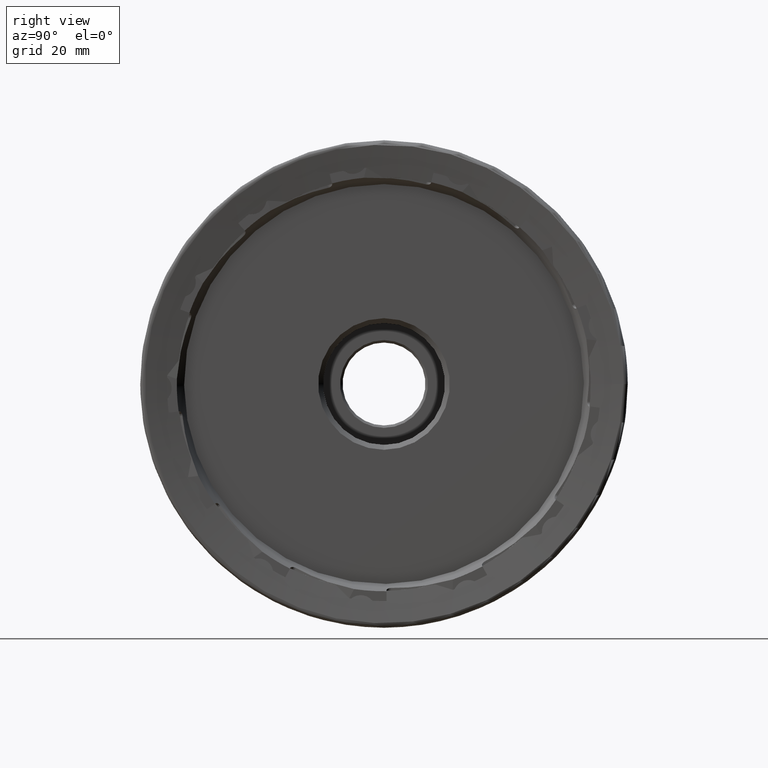
[diagram: clean part render]
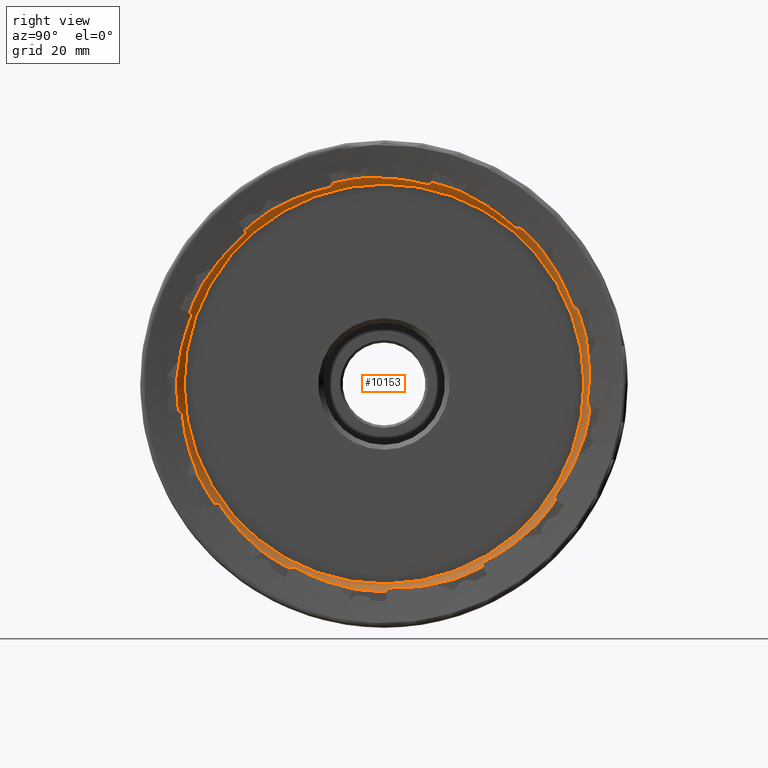
[diagram: same view with one face highlighted and labeled with its STEP entity id]
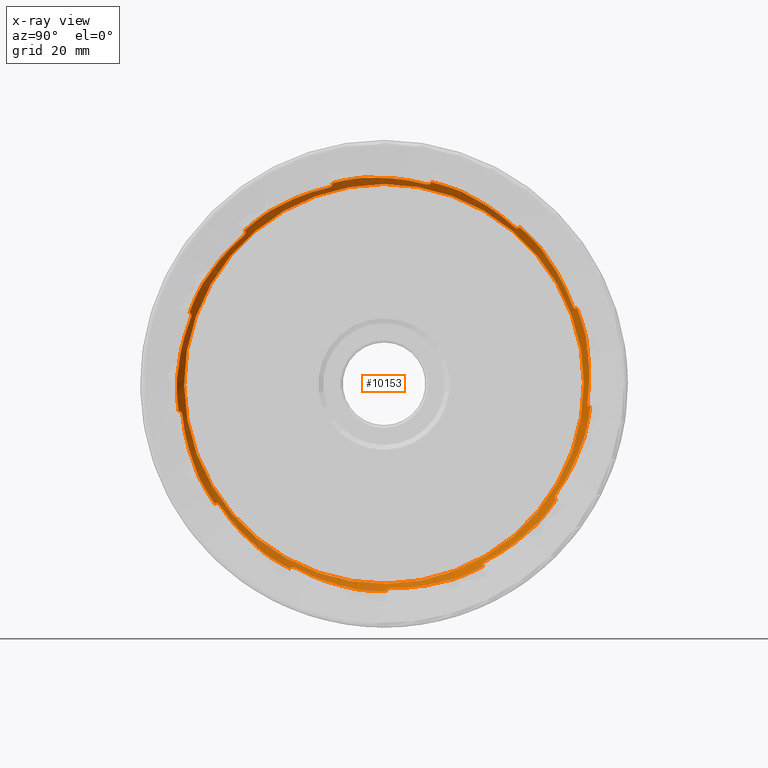
[diagram: x-ray of the same camera — body ghosted, the highlighted face saturated]
A machine part, right view. The second image highlights one B-rep face of the part: STEP entity #10153.
The next image is the same camera in x-ray: the body ghosted, the highlighted face saturated — about 0% of this face is hidden behind the body in this view.
In plain terms, the highlighted conical surface has half-angle 30.964 deg.
Its self-contained STEP definition (entity closure, byte-faithful):
#92 = CARTESIAN_POINT ( 'NONE',  ( -0.5382734614161177600, 27.58444458920950000, 31.90660562521503600 ) ) ;
#163 = ORIENTED_EDGE ( 'NONE', *, *, #583, .F. ) ;
#199 = CARTESIAN_POINT ( 'NONE',  ( -0.3563803818917498600, -39.79999701861208900, -14.91433582355574000 ) ) ;
#203 = CARTESIAN_POINT ( 'NONE',  ( -0.8671490056737861700, 38.97201928325266400, 15.60402164182619200 ) ) ;
#235 = CARTESIAN_POINT ( 'NONE',  ( -0.9598700856959778700, 34.99848969519718600, -23.08143511813080200 ) ) ;
#237 = CIRCLE ( 'NONE', #675, 42.50000000000000000 ) ;
#243 =( BOUNDED_CURVE ( )  B_SPLINE_CURVE ( 3, ( #4775, #10625, #8658, #11721 ),
 .UNSPECIFIED., .F., .T. ) 
 B_SPLINE_CURVE_WITH_KNOTS ( ( 4, 4 ),
 ( 1.281610670228063600, 1.587744216959173600 ),
 .UNSPECIFIED. ) 
 CURVE ( )  GEOMETRIC_REPRESENTATION_ITEM ( )  RATIONAL_B_SPLINE_CURVE ( ( 1.000000000000000000, 0.9922054240191485700, 0.9922054240191485700, 1.000000000000000000 ) ) 
 REPRESENTATION_ITEM ( '' )  );
#281 = CARTESIAN_POINT ( 'NONE',  ( 0.0000000000000000000, 0.0000000000000000000, 0.0000000000000000000 ) ) ;
#282 = CARTESIAN_POINT ( 'NONE',  ( 0.0000000000000000000, 14.12037965242019900, -40.08571913377029700 ) ) ;
#331 = VERTEX_POINT ( 'NONE', #9736 ) ;
#381 = CARTESIAN_POINT ( 'NONE',  ( 0.0000000000000000000, -42.48795412144490100, 1.011807577551491000 ) ) ;
#401 = CARTESIAN_POINT ( 'NONE',  ( 0.0000000000000000000, -24.96861020883731900, -34.39212852149666600 ) ) ;
#450 = VERTEX_POINT ( 'NONE', #1578 ) ;
#453 = ORIENTED_EDGE ( 'NONE', *, *, #3126, .F. ) ;
#542 = DIRECTION ( 'NONE',  ( 0.0000000000000000000, 0.0000000000000000000, 1.000000000000000000 ) ) ;
#544 = DIRECTION ( 'NONE',  ( 0.0000000000000000000, 0.0000000000000000000, 1.000000000000000000 ) ) ;
#565 = CARTESIAN_POINT ( 'NONE',  ( -0.7247607597640884900, 4.434359812745062100, 42.04960888218315100 ) ) ;
#583 = EDGE_CURVE ( 'NONE', #10677, #9729, #12530, .T. ) ;
#585 = CARTESIAN_POINT ( 'NONE',  ( -2.500000000000001300, 0.0000000000000000000, 0.0000000000000000000 ) ) ;
#663 = CARTESIAN_POINT ( 'NONE',  ( -0.5382734614161228700, -19.14714024177555300, -37.58084733451272500 ) ) ;
#675 = AXIS2_PLACEMENT_3D ( 'NONE', #12455, #6524, #544 ) ;
#698 = CARTESIAN_POINT ( 'NONE',  ( -0.2587610317004900300, 9.692598581972355000, 41.22055412189752100 ) ) ;
#703 = CARTESIAN_POINT ( 'NONE',  ( 0.0000000000000000000, -24.96861020883731900, -34.39212852149666600 ) ) ;
#720 = CARTESIAN_POINT ( 'NONE',  ( -0.9598700856959780900, -39.50524616982745100, 14.03504375193177200 ) ) ;
#797 =( BOUNDED_CURVE ( )  B_SPLINE_CURVE ( 3, ( #980, #5949, #2997, #9928 ),
 .UNSPECIFIED., .F., .F. ) 
 B_SPLINE_CURVE_WITH_KNOTS ( ( 4, 4 ),
 ( 1.281610670228063600, 1.587744216959173600 ),
 .UNSPECIFIED. ) 
 CURVE ( )  GEOMETRIC_REPRESENTATION_ITEM ( )  RATIONAL_B_SPLINE_CURVE ( ( 1.000000000000000000, 0.9922054240191485700, 0.9922054240191485700, 1.000000000000000000 ) ) 
 REPRESENTATION_ITEM ( '' )  );
#800 = EDGE_CURVE ( 'NONE', #7624, #7900, #1721, .T. ) ;
#802 = DIRECTION ( 'NONE',  ( -1.000000000000000000, -0.0000000000000000000, -0.0000000000000000000 ) ) ;
#826 = CARTESIAN_POINT ( 'NONE',  ( 0.0000000000000000000, -19.29530881820305800, -37.86741419228643200 ) ) ;
#831 = EDGE_CURVE ( 'NONE', #1180, #1180, #4416, .T. ) ;
#835 = CARTESIAN_POINT ( 'NONE',  ( -0.9598700856959770900, 41.71610133279431000, -4.172986658179301100 ) ) ;
#851 = CARTESIAN_POINT ( 'NONE',  ( -0.2637675818948252400, 0.4826659492175272000, -42.33899874511605800 ) ) ;
#872 = CARTESIAN_POINT ( 'NONE',  ( 0.0000000000000000000, -39.91711057727674500, 14.59021189570122700 ) ) ;
#980 = CARTESIAN_POINT ( 'NONE',  ( 0.0000000000000000000, -37.15100456757289000, 20.64104792931260900 ) ) ;
#1034 = EDGE_CURVE ( 'NONE', #8770, #450, #2116, .T. ) ;
#1048 = CARTESIAN_POINT ( 'NONE',  ( 0.0000000000000000000, 39.55348639959993300, 15.54901005326909100 ) ) ;
#1092 = CARTESIAN_POINT ( 'NONE',  ( -1.096527027081471800, 41.68837919048551300, -3.583157244210838100 ) ) ;
#1106 = CARTESIAN_POINT ( 'NONE',  ( 0.0000000000000000000, 27.79688759402235800, 32.14938630962161900 ) ) ;
#1115 = CARTESIAN_POINT ( 'NONE',  ( -1.096527027081471800, 20.73281796552997800, -36.34432878145701600 ) ) ;
#1176 = ORIENTED_EDGE ( 'NONE', *, *, #4190, .F. ) ;
#1180 = VERTEX_POINT ( 'NONE', #9191 ) ;
#1199 = CARTESIAN_POINT ( 'NONE',  ( -1.096527027081471800, 26.63057916742096900, 32.27339815659595200 ) ) ;
#1211 = CARTESIAN_POINT ( 'NONE',  ( -0.9598700856959777600, -41.50256831815790500, -5.931589251957784200 ) ) ;
#1226 = CARTESIAN_POINT ( 'NONE',  ( 0.0000000000000000000, -38.09142542144817200, -18.84922569662349900 ) ) ;
#1231 =( BOUNDED_CURVE ( )  B_SPLINE_CURVE ( 3, ( #9543, #9494, #565, #3597 ),
 .UNSPECIFIED., .F., .T. ) 
 B_SPLINE_CURVE_WITH_KNOTS ( ( 4, 4 ),
 ( 1.281610670228063400, 1.587744216959173800 ),
 .UNSPECIFIED. ) 
 CURVE ( )  GEOMETRIC_REPRESENTATION_ITEM ( )  RATIONAL_B_SPLINE_CURVE ( ( 1.000000000000000000, 0.9922054240191485700, 0.9922054240191485700, 1.000000000000000000 ) ) 
 REPRESENTATION_ITEM ( '' )  );
#1234 = CARTESIAN_POINT ( 'NONE',  ( -0.2587610317004548900, 39.42987454415284500, 15.43909138582656800 ) ) ;
#1266 = CARTESIAN_POINT ( 'NONE',  ( 0.0000000000000000000, 31.13173779724778700, -28.93207392710403500 ) ) ;
#1277 = CARTESIAN_POINT ( 'NONE',  ( -0.5382734614161247500, 34.99890792396801900, -23.53740661049519600 ) ) ;
#1306 = CARTESIAN_POINT ( 'NONE',  ( -1.096527027081471800, 41.68837919048551300, -3.583157244210838100 ) ) ;
#1324 = DIRECTION ( 'NONE',  ( 0.0000000000000000000, 0.0000000000000000000, 1.000000000000000000 ) ) ;
#1330 = CARTESIAN_POINT ( 'NONE',  ( -1.096527027081471800, 20.73281796552997800, -36.34432878145701600 ) ) ;
#1381 = VERTEX_POINT ( 'NONE', #7365 ) ;
#1485 = CARTESIAN_POINT ( 'NONE',  ( -1.096527027081471800, -28.82812714123517100, 30.32654053622378500 ) ) ;
#1578 = CARTESIAN_POINT ( 'NONE',  ( 0.0000000000000000000, -34.68301230045200600, -24.56295295290645300 ) ) ;
#1632 = CARTESIAN_POINT ( 'NONE',  ( -0.9598700856959816500, -10.89092309506350600, 40.48499379022697300 ) ) ;
#1636 = ORIENTED_EDGE ( 'NONE', *, *, #4163, .F. ) ;
#1650 = DIRECTION ( 'NONE',  ( 1.000000000000000000, 0.0000000000000000000, 0.0000000000000000000 ) ) ;
#1679 = CARTESIAN_POINT ( 'NONE',  ( 0.0000000000000000000, -19.29530881820305800, -37.86741419228643200 ) ) ;
#1706 = DIRECTION ( 'NONE',  ( -1.000000000000000000, -0.0000000000000000000, -0.0000000000000000000 ) ) ;
#1721 =( BOUNDED_CURVE ( )  B_SPLINE_CURVE ( 3, ( #2117, #4261, #4688, #6797 ),
 .UNSPECIFIED., .F., .F. ) 
 B_SPLINE_CURVE_WITH_KNOTS ( ( 4, 4 ),
 ( 1.281610670228063400, 1.587744216959173600 ),
 .UNSPECIFIED. ) 
 CURVE ( )  GEOMETRIC_REPRESENTATION_ITEM ( )  RATIONAL_B_SPLINE_CURVE ( ( 1.000000000000000000, 0.9922054240191485700, 0.9922054240191485700, 1.000000000000000000 ) ) 
 REPRESENTATION_ITEM ( '' )  );
#1736 = CARTESIAN_POINT ( 'NONE',  ( -0.5382734614161273100, -39.61477336622164800, 14.47766545272639500 ) ) ;
#1838 = CARTESIAN_POINT ( 'NONE',  ( -0.5382734614161233100, 41.92837217427262400, -4.576535003018418200 ) ) ;
#1846 = VERTEX_POINT ( 'NONE', #8125 ) ;
#1855 = CARTESIAN_POINT ( 'NONE',  ( 0.0000000000000000000, 0.5127173806166172000, -42.49690719202532600 ) ) ;
#1941 = ORIENTED_EDGE ( 'NONE', *, *, #11878, .F. ) ;
#1952 = CARTESIAN_POINT ( 'NONE',  ( 0.0000000000000000000, -28.56443653435414000, 31.46939728489973800 ) ) ;
#2016 = CIRCLE ( 'NONE', #8404, 42.50000000000000000 ) ;
#2032 = CARTESIAN_POINT ( 'NONE',  ( -0.9598700856959757600, -33.99215222496634700, -24.53936664162342800 ) ) ;
#2085 = VERTEX_POINT ( 'NONE', #826 ) ;
#2116 = B_SPLINE_CURVE_WITH_KNOTS ( 'NONE', 3,
 ( #4119, #12052, #10257, #2032, #8767, #8358, #9442, #11364 ),
 .UNSPECIFIED., .F., .F.,
 ( 4, 2, 2, 4 ),
 ( 0.001799596435867505800, 0.002256168916499753100, 0.002712741397132000300, 0.003625886358396481400 ),
 .UNSPECIFIED. ) ;
#2117 = CARTESIAN_POINT ( 'NONE',  ( 0.0000000000000000000, -6.125787301754344000, -42.05620917217417100 ) ) ;
#2182 = VERTEX_POINT ( 'NONE', #11952 ) ;
#2219 = CARTESIAN_POINT ( 'NONE',  ( -0.5382734614161232000, -41.80524639498675300, -5.590567026037683200 ) ) ;
#2253 = EDGE_CURVE ( 'NONE', #12562, #5040, #8781, .T. ) ;
#2268 = CARTESIAN_POINT ( 'NONE',  ( 0.0000000000000000000, 27.79688759402235800, 32.14938630962161900 ) ) ;
#2277 = CARTESIAN_POINT ( 'NONE',  ( 0.0000000000000000000, 35.26552563838162500, -23.71903668888448600 ) ) ;
#2323 = EDGE_CURVE ( 'NONE', #12293, #10993, #7708, .T. ) ;
#2359 = ORIENTED_EDGE ( 'NONE', *, *, #12636, .F. ) ;
#2417 = CARTESIAN_POINT ( 'NONE',  ( -1.096527027081471800, -39.61948500061141900, 13.45571936585978900 ) ) ;
#2418 = EDGE_CURVE ( 'NONE', #5855, #7329, #237, .T. ) ;
#2443 = CARTESIAN_POINT ( 'NONE',  ( -0.7247607597640879400, -31.20321440103654000, -28.53405973808160600 ) ) ;
#2522 = DIRECTION ( 'NONE',  ( -1.000000000000000000, -0.0000000000000000000, -0.0000000000000000000 ) ) ;
#2539 = CIRCLE ( 'NONE', #12538, 42.50000000000000000 ) ;
#2624 = CARTESIAN_POINT ( 'NONE',  ( -1.096527027081471800, 35.24805035347000600, -22.54628398751534800 ) ) ;
#2637 = CARTESIAN_POINT ( 'NONE',  ( -0.5382734614161310800, -10.58887111569495900, 40.82657069009561500 ) ) ;
#2647 = CARTESIAN_POINT ( 'NONE',  ( -1.109793032573002500, -18.26754737722407300, -37.63527644466458400 ) ) ;
#2651 = VERTEX_POINT ( 'NONE', #4876 ) ;
#2662 = ORIENTED_EDGE ( 'NONE', *, *, #3045, .F. ) ;
#2665 = CIRCLE ( 'NONE', #3878, 42.50000000000000000 ) ;
#2752 = CARTESIAN_POINT ( 'NONE',  ( 0.0000000000000000000, 0.0000000000000000000, 0.0000000000000000000 ) ) ;
#2759 = CARTESIAN_POINT ( 'NONE',  ( 0.0000000000000000000, -39.91711057727674500, 14.59021189570122700 ) ) ;
#2835 = CARTESIAN_POINT ( 'NONE',  ( -1.109791498932839900, 1.314892847164376200, -41.81373516719091300 ) ) ;
#2864 = CARTESIAN_POINT ( 'NONE',  ( 0.0000000000000000000, 42.24885814221371300, -4.613457020402738500 ) ) ;
#2946 = EDGE_CURVE ( 'NONE', #7096, #1846, #11210, .T. ) ;
#2949 = ORIENTED_EDGE ( 'NONE', *, *, #3423, .F. ) ;
#2997 = CARTESIAN_POINT ( 'NONE',  ( -0.7247607597640883800, -32.08714619323354400, 27.53630700125785700 ) ) ;
#3045 = EDGE_CURVE ( 'NONE', #7329, #4809, #1231, .T. ) ;
#3055 = B_SPLINE_CURVE_WITH_KNOTS ( 'NONE', 3,
 ( #4179, #11131, #7160, #1211, #8163, #2219, #9159, #3225 ),
 .UNSPECIFIED., .F., .F.,
 ( 4, 2, 2, 4 ),
 ( 0.001799596435867504500, 0.002256168916499744800, 0.002712741397131985600, 0.003625886358396475700 ),
 .UNSPECIFIED. ) ;
#3061 = CARTESIAN_POINT ( 'NONE',  ( 0.0000000000000000000, 35.26552563838162500, -23.71903668888448600 ) ) ;
#3077 = CARTESIAN_POINT ( 'NONE',  ( -1.096527027081471800, 26.63057916742096900, 32.27339815659595200 ) ) ;
#3125 = AXIS2_PLACEMENT_3D ( 'NONE', #2752, #1650, #9685 ) ;
#3126 = EDGE_CURVE ( 'NONE', #3444, #10291, #243, .T. ) ;
#3129 = CARTESIAN_POINT ( 'NONE',  ( -1.081686676694940500, 20.46607319616928700, -36.50566613856053500 ) ) ;
#3152 = B_SPLINE_CURVE_WITH_KNOTS ( 'NONE', 3,
 ( #7177, #11183, #6239, #235, #7218, #1277, #8221, #2277 ),
 .UNSPECIFIED., .F., .F.,
 ( 4, 2, 2, 4 ),
 ( 0.001799596435867492200, 0.002256168916499728800, 0.002712741397131965600, 0.003625886358396447100 ),
 .UNSPECIFIED. ) ;
#3167 = VERTEX_POINT ( 'NONE', #9782 ) ;
#3183 = ORIENTED_EDGE ( 'NONE', *, *, #12729, .F. ) ;
#3199 = VERTEX_POINT ( 'NONE', #872 ) ;
#3220 = ORIENTED_EDGE ( 'NONE', *, *, #2418, .F. ) ;
#3225 = CARTESIAN_POINT ( 'NONE',  ( 0.0000000000000000000, -42.12525564027616600, -5.631415207688179200 ) ) ;
#3267 = CARTESIAN_POINT ( 'NONE',  ( 0.0000000000000000000, 32.47364285815646000, 27.41737623334709200 ) ) ;
#3282 = CARTESIAN_POINT ( 'NONE',  ( -0.3563803818917504800, 28.05841969096744000, -31.92494730120721500 ) ) ;
#3341 = B_SPLINE_CURVE_WITH_KNOTS ( 'NONE', 3,
 ( #3077, #9006, #5093, #12010, #6088, #92, #7078, #1106 ),
 .UNSPECIFIED., .F., .F.,
 ( 4, 2, 2, 4 ),
 ( 0.001799596435866568600, 0.002256168916498804600, 0.002712741397131040100, 0.003625886358395519900 ),
 .UNSPECIFIED. ) ;
#3358 = CIRCLE ( 'NONE', #7309, 42.50000000000000000 ) ;
#3367 = CARTESIAN_POINT ( 'NONE',  ( -0.3563803818917505300, 39.68075956282097400, -15.22873915519335400 ) ) ;
#3403 = DIRECTION ( 'NONE',  ( -1.000000000000000000, -0.0000000000000000000, -0.0000000000000000000 ) ) ;
#3408 = CARTESIAN_POINT ( 'NONE',  ( -1.096527027081471800, 26.63057916742096900, 32.27339815659595200 ) ) ;
#3423 = EDGE_CURVE ( 'NONE', #9729, #8636, #3152, .T. ) ;
#3444 = VERTEX_POINT ( 'NONE', #282 ) ;
#3487 = CARTESIAN_POINT ( 'NONE',  ( -0.9598700856959793100, -28.45774821381626300, 30.78641737286658800 ) ) ;
#3597 = CARTESIAN_POINT ( 'NONE',  ( -1.096527027081471800, 8.582010826462909100, 40.95252209010963200 ) ) ;
#3621 = CARTESIAN_POINT ( 'NONE',  ( 0.0000000000000000000, -23.30320758540968400, 35.54167295206156000 ) ) ;
#3635 = B_SPLINE_CURVE_WITH_KNOTS ( 'NONE', 3,
 ( #1115, #7082, #3129, #10060, #4138, #11076, #5139, #12067 ),
 .UNSPECIFIED., .F., .F.,
 ( 4, 2, 2, 4 ),
 ( 0.001799596435867495800, 0.002256168916499737400, 0.002712741397131979100, 0.003625886358396465300 ),
 .UNSPECIFIED. ) ;
#3646 = AXIS2_PLACEMENT_3D ( 'NONE', #10109, #4182, #11135 ) ;
#3650 = CARTESIAN_POINT ( 'NONE',  ( 0.0000000000000000000, -10.66799432018837000, 41.13932300347720900 ) ) ;
#3667 = CIRCLE ( 'NONE', #5984, 42.50000000000000000 ) ;
#3693 = CARTESIAN_POINT ( 'NONE',  ( -1.096527027081471800, 8.582010826462909100, 40.95252209010963200 ) ) ;
#3712 = CARTESIAN_POINT ( 'NONE',  ( -1.109793032573003400, -39.56278242300938800, 13.59792510624586400 ) ) ;
#3765 = ORIENTED_EDGE ( 'NONE', *, *, #6515, .F. ) ;
#3780 = EDGE_CURVE ( 'NONE', #4809, #3932, #6103, .T. ) ;
#3798 = CARTESIAN_POINT ( 'NONE',  ( 0.0000000000000000000, 0.0000000000000000000, 0.0000000000000000000 ) ) ;
#3859 = B_SPLINE_CURVE_WITH_KNOTS ( 'NONE', 3,
 ( #9593, #2647, #5656, #12558, #6642, #663, #7632, #1679 ),
 .UNSPECIFIED., .F., .F.,
 ( 4, 2, 2, 4 ),
 ( 0.001799596435867500000, 0.002256168916499740900, 0.002712741397131982100, 0.003625886358396460100 ),
 .UNSPECIFIED. ) ;
#3878 = AXIS2_PLACEMENT_3D ( 'NONE', #281, #7264, #1324 ) ;
#3932 = VERTEX_POINT ( 'NONE', #11946 ) ;
#4016 = CARTESIAN_POINT ( 'NONE',  ( 0.0000000000000000000, -6.125787301754344000, -42.05620917217417100 ) ) ;
#4025 = ORIENTED_EDGE ( 'NONE', *, *, #2946, .F. ) ;
#4070 = CARTESIAN_POINT ( 'NONE',  ( 0.0000000000000000000, 0.0000000000000000000, 0.0000000000000000000 ) ) ;
#4078 = EDGE_CURVE ( 'NONE', #3199, #3167, #2665, .T. ) ;
#4119 = CARTESIAN_POINT ( 'NONE',  ( -1.096527027081471800, -33.58027265458649400, -24.96247711686633900 ) ) ;
#4138 = CARTESIAN_POINT ( 'NONE',  ( -0.8671490056737905000, 20.18780858270854500, -36.80701241666750400 ) ) ;
#4163 = EDGE_CURVE ( 'NONE', #2651, #1381, #11115, .T. ) ;
#4179 = CARTESIAN_POINT ( 'NONE',  ( -1.096527027081471800, -41.33449631290149300, -6.497644952225565300 ) ) ;
#4182 = DIRECTION ( 'NONE',  ( -1.000000000000000000, -0.0000000000000000000, -0.0000000000000000000 ) ) ;
#4190 = EDGE_CURVE ( 'NONE', #4275, #3444, #2016, .T. ) ;
#4203 = CARTESIAN_POINT ( 'NONE',  ( -1.109793032573003200, 38.63026011419033500, 16.05678435289730300 ) ) ;
#4211 = ORIENTED_EDGE ( 'NONE', *, *, #6291, .F. ) ;
#4261 = CARTESIAN_POINT ( 'NONE',  ( -0.3563803818917498100, -10.33471747297239500, -41.22706381120495000 ) ) ;
#4275 = VERTEX_POINT ( 'NONE', #9741 ) ;
#4416 = CIRCLE ( 'NONE', #12720, 41.00000000000000000 ) ;
#4453 = CARTESIAN_POINT ( 'NONE',  ( 0.0000000000000000000, 0.0000000000000000000, 0.0000000000000000000 ) ) ;
#4474 = AXIS2_PLACEMENT_3D ( 'NONE', #6766, #802, #7773 ) ;
#4489 = CARTESIAN_POINT ( 'NONE',  ( -0.5382734614161262000, -28.34903316902774200, 31.22923925105345700 ) ) ;
#4520 = VERTEX_POINT ( 'NONE', #7690 ) ;
#4555 = AXIS2_PLACEMENT_3D ( 'NONE', #5627, #12541, #6617 ) ;
#4575 = ORIENTED_EDGE ( 'NONE', *, *, #8146, .F. ) ;
#4606 = CARTESIAN_POINT ( 'NONE',  ( -1.096527027081471800, -11.43259277039565300, 40.24991674417160000 ) ) ;
#4614 = ORIENTED_EDGE ( 'NONE', *, *, #2323, .F. ) ;
#4688 = CARTESIAN_POINT ( 'NONE',  ( -0.7247607597640878300, -14.36863545837913000, -39.76651190584451000 ) ) ;
#4775 = CARTESIAN_POINT ( 'NONE',  ( 0.0000000000000000000, 14.12037965242019900, -40.08571913377029700 ) ) ;
#4801 = DIRECTION ( 'NONE',  ( 0.0000000000000000000, 0.0000000000000000000, 1.000000000000000000 ) ) ;
#4809 = VERTEX_POINT ( 'NONE', #5225 ) ;
#4832 = EDGE_CURVE ( 'NONE', #2085, #12206, #2539, .T. ) ;
#4839 = CARTESIAN_POINT ( 'NONE',  ( -1.082229040535127800, 1.158123609787410600, -41.83486117019413100 ) ) ;
#4873 = DIRECTION ( 'NONE',  ( -1.000000000000000000, -0.0000000000000000000, -0.0000000000000000000 ) ) ;
#4876 = CARTESIAN_POINT ( 'NONE',  ( 0.0000000000000000000, -42.48795412144490100, 1.011807577551491000 ) ) ;
#4884 = AXIS2_PLACEMENT_3D ( 'NONE', #5439, #12354, #6425 ) ;
#4887 = CARTESIAN_POINT ( 'NONE',  ( -1.096527027081471800, 20.73281796552997800, -36.34432878145701600 ) ) ;
#4976 = EDGE_CURVE ( 'NONE', #9938, #10006, #9694, .T. ) ;
#5040 = VERTEX_POINT ( 'NONE', #9556 ) ;
#5090 = DIRECTION ( 'NONE',  ( 0.0000000000000000000, 0.0000000000000000000, 1.000000000000000000 ) ) ;
#5093 = CARTESIAN_POINT ( 'NONE',  ( -1.081686676694941600, 26.87602121567303500, 32.08119847988376700 ) ) ;
#5135 = EDGE_CURVE ( 'NONE', #8645, #2182, #10142, .T. ) ;
#5139 = CARTESIAN_POINT ( 'NONE',  ( -0.2587610317004573900, 20.07926920715680600, -37.28140954274749700 ) ) ;
#5209 = CARTESIAN_POINT ( 'NONE',  ( -1.096527027081471800, 38.57840275439254900, 16.20082764201647100 ) ) ;
#5225 = CARTESIAN_POINT ( 'NONE',  ( -1.096527027081471800, 8.582010826462909100, 40.95252209010963200 ) ) ;
#5268 = CARTESIAN_POINT ( 'NONE',  ( 0.0000000000000000000, 0.0000000000000000000, 0.0000000000000000000 ) ) ;
#5277 = CARTESIAN_POINT ( 'NONE',  ( -1.096527027081471800, 38.57840275439254900, 16.20082764201647100 ) ) ;
#5294 = B_SPLINE_CURVE_WITH_KNOTS ( 'NONE', 3,
 ( #10655, #3712, #6693, #720, #7691, #1736, #8676, #2759 ),
 .UNSPECIFIED., .F., .F.,
 ( 4, 2, 2, 4 ),
 ( 0.001799596435867504700, 0.002256168916499747000, 0.002712741397131989000, 0.003625886358396477500 ),
 .UNSPECIFIED. ) ;
#5306 = ORIENTED_EDGE ( 'NONE', *, *, #5580, .F. ) ;
#5345 = ORIENTED_EDGE ( 'NONE', *, *, #12013, .F. ) ;
#5391 = EDGE_CURVE ( 'NONE', #10291, #10292, #9189, .T. ) ;
#5439 = CARTESIAN_POINT ( 'NONE',  ( 0.0000000000000000000, 0.0000000000000000000, 0.0000000000000000000 ) ) ;
#5452 = DIRECTION ( 'NONE',  ( 0.0000000000000000000, 0.0000000000000000000, 1.000000000000000000 ) ) ;
#5489 = CARTESIAN_POINT ( 'NONE',  ( 0.0000000000000000000, -28.56443653435414000, 31.46939728489973800 ) ) ;
#5534 =( BOUNDED_CURVE ( )  B_SPLINE_CURVE ( 3, ( #10173, #3282, #7266, #1330 ),
 .UNSPECIFIED., .F., .F. ) 
 B_SPLINE_CURVE_WITH_KNOTS ( ( 4, 4 ),
 ( 1.281610670228063400, 1.587744216959173600 ),
 .UNSPECIFIED. ) 
 CURVE ( )  GEOMETRIC_REPRESENTATION_ITEM ( )  RATIONAL_B_SPLINE_CURVE ( ( 1.000000000000000000, 0.9922054240191485700, 0.9922054240191485700, 1.000000000000000000 ) ) 
 REPRESENTATION_ITEM ( '' )  );
#5580 = EDGE_CURVE ( 'NONE', #10666, #4275, #3635, .T. ) ;
#5597 = CARTESIAN_POINT ( 'NONE',  ( -1.109793032573002300, -11.28334900503595200, 40.28403350554664500 ) ) ;
#5617 = CARTESIAN_POINT ( 'NONE',  ( -1.096527027081471800, -11.43259277039565300, 40.24991674417160000 ) ) ;
#5627 = CARTESIAN_POINT ( 'NONE',  ( 0.0000000000000000000, 0.0000000000000000000, 0.0000000000000000000 ) ) ;
#5656 = CARTESIAN_POINT ( 'NONE',  ( -1.081686676694938700, -18.41751955897206000, -37.58083002789966500 ) ) ;
#5680 = CARTESIAN_POINT ( 'NONE',  ( -0.9598700856959784300, 9.170881254916928100, 40.90894602731189200 ) ) ;
#5831 = CARTESIAN_POINT ( 'NONE',  ( -0.8670117448450719300, 0.7703829030308621000, -41.97281415834194000 ) ) ;
#5855 = VERTEX_POINT ( 'NONE', #6678 ) ;
#5949 = CARTESIAN_POINT ( 'NONE',  ( -0.3563803818917505300, -34.88323297958470400, 24.28244700666184400 ) ) ;
#5980 = CIRCLE ( 'NONE', #4555, 42.50000000000000000 ) ;
#5984 = AXIS2_PLACEMENT_3D ( 'NONE', #10816, #4873, #11814 ) ;
#5999 = CARTESIAN_POINT ( 'NONE',  ( 0.0000000000000000000, -42.12525564027616600, -5.631415207688179200 ) ) ;
#6088 = CARTESIAN_POINT ( 'NONE',  ( -0.8671490056738056000, 27.25645887220002100, 31.92787540944221900 ) ) ;
#6103 = B_SPLINE_CURVE_WITH_KNOTS ( 'NONE', 3,
 ( #3693, #9581, #11640, #5680, #12592, #6665, #698, #7665 ),
 .UNSPECIFIED., .F., .F.,
 ( 4, 2, 2, 4 ),
 ( 0.001799596435867508800, 0.002256168916499749600, 0.002712741397131990800, 0.003625886358396463200 ),
 .UNSPECIFIED. ) ;
#6172 = CARTESIAN_POINT ( 'NONE',  ( 0.0000000000000000000, 16.01249269138642400, 39.36813531027724600 ) ) ;
#6181 = CARTESIAN_POINT ( 'NONE',  ( -0.3563803818917502000, 42.21271562382462900, 4.956189605073384500 ) ) ;
#6204 = CARTESIAN_POINT ( 'NONE',  ( -0.9598700856959765400, 38.87705688856802800, 15.69144275522018200 ) ) ;
#6239 = CARTESIAN_POINT ( 'NONE',  ( -1.081686676694939300, 35.08683679849039500, -22.81310359786899500 ) ) ;
#6257 = ORIENTED_EDGE ( 'NONE', *, *, #4832, .F. ) ;
#6259 = DIRECTION ( 'NONE',  ( 0.0000000000000000000, 0.0000000000000000000, 1.000000000000000000 ) ) ;
#6291 = EDGE_CURVE ( 'NONE', #10993, #8645, #11752, .T. ) ;
#6362 = CARTESIAN_POINT ( 'NONE',  ( -0.3563803818917495900, -42.17218463395868600, 5.289992338239036600 ) ) ;
#6385 = CARTESIAN_POINT ( 'NONE',  ( -0.3563803818917499200, -28.31010972826096200, -31.70196938540491200 ) ) ;
#6425 = DIRECTION ( 'NONE',  ( 0.0000000000000000000, 0.0000000000000000000, 1.000000000000000000 ) ) ;
#6490 = ORIENTED_EDGE ( 'NONE', *, *, #1034, .F. ) ;
#6515 = EDGE_CURVE ( 'NONE', #7900, #2085, #3859, .T. ) ;
#6524 = DIRECTION ( 'NONE',  ( -1.000000000000000000, -0.0000000000000000000, -0.0000000000000000000 ) ) ;
#6617 = DIRECTION ( 'NONE',  ( 0.0000000000000000000, 0.0000000000000000000, 1.000000000000000000 ) ) ;
#6618 = ORIENTED_EDGE ( 'NONE', *, *, #7371, .F. ) ;
#6642 = CARTESIAN_POINT ( 'NONE',  ( -0.8671490056737867200, -18.82359500107102300, -37.52300693772355800 ) ) ;
#6665 = CARTESIAN_POINT ( 'NONE',  ( -0.5382734614161309700, 9.597073700513096400, 41.07102679755026000 ) ) ;
#6678 = CARTESIAN_POINT ( 'NONE',  ( 0.0000000000000000000, -10.66799432018837000, 41.13932300347720900 ) ) ;
#6693 = CARTESIAN_POINT ( 'NONE',  ( -1.081686676694940000, -39.52681013084254100, 13.75336661226358400 ) ) ;
#6756 = CARTESIAN_POINT ( 'NONE',  ( -1.109793032573003700, 41.66735634796184200, -3.734800559255357000 ) ) ;
#6766 = CARTESIAN_POINT ( 'NONE',  ( 0.0000000000000000000, 0.0000000000000000000, 0.0000000000000000000 ) ) ;
#6797 = CARTESIAN_POINT ( 'NONE',  ( -1.096527027081471800, -18.13321321726120100, -37.70870660449375600 ) ) ;
#6802 = CARTESIAN_POINT ( 'NONE',  ( -1.081686676694939800, 41.66962893249888800, -3.894333950607503000 ) ) ;
#6815 = CARTESIAN_POINT ( 'NONE',  ( -0.5241056193025625000, 0.5401493471209943800, -42.18208886178039300 ) ) ;
#6941 = CARTESIAN_POINT ( 'NONE',  ( 0.0000000000000000000, 0.5127173806166172000, -42.49690719202532600 ) ) ;
#7060 = CIRCLE ( 'NONE', #3646, 42.50000000000000000 ) ;
#7078 = CARTESIAN_POINT ( 'NONE',  ( -0.2587610317004820400, 27.73851648357527800, 31.99461286963727600 ) ) ;
#7082 = CARTESIAN_POINT ( 'NONE',  ( -1.109793032573003900, 20.59607562816393800, -36.41317054259903300 ) ) ;
#7096 = VERTEX_POINT ( 'NONE', #1952 ) ;
#7109 = CARTESIAN_POINT ( 'NONE',  ( -0.3563803818917497500, 19.90069152839692300, 37.55582048672239600 ) ) ;
#7146 = CARTESIAN_POINT ( 'NONE',  ( -0.7247607597640877100, 23.46785823903756500, 35.17232980292748600 ) ) ;
#7160 = CARTESIAN_POINT ( 'NONE',  ( -1.081686676694940200, -41.39076036353684200, -6.191023244930501200 ) ) ;
#7177 = CARTESIAN_POINT ( 'NONE',  ( -1.096527027081471800, 35.24805035347000600, -22.54628398751534800 ) ) ;
#7184 = CARTESIAN_POINT ( 'NONE',  ( -0.5382734614161224200, 39.25255165111212800, 15.43276562042420800 ) ) ;
#7218 = CARTESIAN_POINT ( 'NONE',  ( -0.8671490056737870500, 34.98048831802098800, -23.20924848946200200 ) ) ;
#7247 = CARTESIAN_POINT ( 'NONE',  ( -0.7247607597640877100, 42.27752290058146700, 0.6664919236371671400 ) ) ;
#7264 = DIRECTION ( 'NONE',  ( -1.000000000000000000, -0.0000000000000000000, -0.0000000000000000000 ) ) ;
#7266 = CARTESIAN_POINT ( 'NONE',  ( -0.7247607597640884900, 24.56488243884119500, -34.41510867132886600 ) ) ;
#7301 = CARTESIAN_POINT ( 'NONE',  ( 0.0000000000000000000, 32.47364285815646000, 27.41737623334709200 ) ) ;
#7309 = AXIS2_PLACEMENT_3D ( 'NONE', #4070, #11015, #5090 ) ;
#7329 = VERTEX_POINT ( 'NONE', #11474 ) ;
#7365 = CARTESIAN_POINT ( 'NONE',  ( -1.096527027081471800, -39.61948500061141900, 13.45571936585978900 ) ) ;
#7371 = EDGE_CURVE ( 'NONE', #8010, #5855, #9659, .T. ) ;
#7573 = CARTESIAN_POINT ( 'NONE',  ( -1.096527027081471800, -18.13321321726120100, -37.70870660449375600 ) ) ;
#7583 = CARTESIAN_POINT ( 'NONE',  ( -1.081686676694941100, -11.13498856245405700, 40.34272972922159500 ) ) ;
#7624 = VERTEX_POINT ( 'NONE', #4016 ) ;
#7632 = CARTESIAN_POINT ( 'NONE',  ( -0.2587610317004540600, -19.27567357474431000, -37.70316906610691600 ) ) ;
#7647 = AXIS2_PLACEMENT_3D ( 'NONE', #8468, #2522, #9466 ) ;
#7659 = CARTESIAN_POINT ( 'NONE',  ( 0.0000000000000000000, 0.0000000000000000000, 0.0000000000000000000 ) ) ;
#7665 = CARTESIAN_POINT ( 'NONE',  ( 0.0000000000000000000, 9.672356829464146000, 41.38472560454543700 ) ) ;
#7690 = CARTESIAN_POINT ( 'NONE',  ( -1.096527027081471800, -28.82812714123517100, 30.32654053622378500 ) ) ;
#7691 = CARTESIAN_POINT ( 'NONE',  ( -0.8671490056737910500, -39.51835562182079500, 14.16345111052044800 ) ) ;
#7708 = CIRCLE ( 'NONE', #8924, 42.50000000000000000 ) ;
#7773 = DIRECTION ( 'NONE',  ( 0.0000000000000000000, 0.0000000000000000000, 1.000000000000000000 ) ) ;
#7779 = CARTESIAN_POINT ( 'NONE',  ( -1.096527027081471800, 38.57840275439254900, 16.20082764201647100 ) ) ;
#7802 = ORIENTED_EDGE ( 'NONE', *, *, #5391, .F. ) ;
#7805 = ORIENTED_EDGE ( 'NONE', *, *, #10563, .F. ) ;
#7807 = CARTESIAN_POINT ( 'NONE',  ( -0.8671490056737890500, 41.75955974025821900, -4.294525435086042000 ) ) ;
#7818 = CARTESIAN_POINT ( 'NONE',  ( -0.1301680050167254000, 0.4830668152089315800, -42.41915843367998900 ) ) ;
#7900 = VERTEX_POINT ( 'NONE', #7573 ) ;
#7924 = EDGE_CURVE ( 'NONE', #3932, #331, #5980, .T. ) ;
#7959 = ORIENTED_EDGE ( 'NONE', *, *, #4078, .F. ) ;
#8010 = VERTEX_POINT ( 'NONE', #9937 ) ;
#8043 = EDGE_CURVE ( 'NONE', #10302, #2651, #7060, .T. ) ;
#8101 =( BOUNDED_CURVE ( )  B_SPLINE_CURVE ( 3, ( #401, #6385, #2443, #9383 ),
 .UNSPECIFIED., .F., .F. ) 
 B_SPLINE_CURVE_WITH_KNOTS ( ( 4, 4 ),
 ( 1.281610670228063400, 1.587744216959173800 ),
 .UNSPECIFIED. ) 
 CURVE ( )  GEOMETRIC_REPRESENTATION_ITEM ( )  RATIONAL_B_SPLINE_CURVE ( ( 1.000000000000000000, 0.9922054240191485700, 0.9922054240191485700, 1.000000000000000000 ) ) 
 REPRESENTATION_ITEM ( '' )  );
#8118 = ORIENTED_EDGE ( 'NONE', *, *, #800, .F. ) ;
#8125 = CARTESIAN_POINT ( 'NONE',  ( 0.0000000000000000000, -23.30320758540968400, 35.54167295206156000 ) ) ;
#8146 = EDGE_CURVE ( 'NONE', #4520, #7096, #11820, .T. ) ;
#8163 = CARTESIAN_POINT ( 'NONE',  ( -0.8671490056737883900, -41.57385003641551400, -5.823982448671323200 ) ) ;
#8183 = CARTESIAN_POINT ( 'NONE',  ( -1.096527027081471800, -41.33449631290149300, -6.497644952225565300 ) ) ;
#8188 = CARTESIAN_POINT ( 'NONE',  ( 0.0000000000000000000, 39.55348639959993300, 15.54901005326909100 ) ) ;
#8221 = CARTESIAN_POINT ( 'NONE',  ( -0.2587610317004553900, 35.10484481115842200, -23.67974704620013400 ) ) ;
#8251 = ORIENTED_EDGE ( 'NONE', *, *, #11435, .F. ) ;
#8265 = CARTESIAN_POINT ( 'NONE',  ( 0.0000000000000000000, 41.01118999083747200, -11.15043925302649400 ) ) ;
#8358 = CARTESIAN_POINT ( 'NONE',  ( -0.5382734614161228700, -34.41864128249459000, -24.37806797277282200 ) ) ;
#8361 = CARTESIAN_POINT ( 'NONE',  ( -0.7247607597640876000, -41.20851687880970400, 9.470548597748777600 ) ) ;
#8381 =( BOUNDED_CURVE ( )  B_SPLINE_CURVE ( 3, ( #3267, #9219, #11227, #5277 ),
 .UNSPECIFIED., .F., .F. ) 
 B_SPLINE_CURVE_WITH_KNOTS ( ( 4, 4 ),
 ( 1.281610670228063600, 1.587744216959173600 ),
 .UNSPECIFIED. ) 
 CURVE ( )  GEOMETRIC_REPRESENTATION_ITEM ( )  RATIONAL_B_SPLINE_CURVE ( ( 1.000000000000000000, 0.9922054240191485700, 0.9922054240191485700, 1.000000000000000000 ) ) 
 REPRESENTATION_ITEM ( '' )  );
#8388 = CARTESIAN_POINT ( 'NONE',  ( -1.109793032573004100, -28.71183319947234500, 30.42610646420485700 ) ) ;
#8404 = AXIS2_PLACEMENT_3D ( 'NONE', #7659, #1706, #8654 ) ;
#8468 = CARTESIAN_POINT ( 'NONE',  ( 0.0000000000000000000, 0.0000000000000000000, 0.0000000000000000000 ) ) ;
#8588 = CARTESIAN_POINT ( 'NONE',  ( -0.8671490056738083700, -10.79269292820939300, 40.56872635134329400 ) ) ;
#8636 = VERTEX_POINT ( 'NONE', #3061 ) ;
#8645 = VERTEX_POINT ( 'NONE', #1092 ) ;
#8651 = CIRCLE ( 'NONE', #4474, 42.50000000000000000 ) ;
#8654 = DIRECTION ( 'NONE',  ( 0.0000000000000000000, 0.0000000000000000000, 1.000000000000000000 ) ) ;
#8658 = CARTESIAN_POINT ( 'NONE',  ( -0.7247607597640880500, 5.757624706963651000, -41.88893543439873200 ) ) ;
#8674 = ORIENTED_EDGE ( 'NONE', *, *, #10088, .F. ) ;
#8676 = CARTESIAN_POINT ( 'NONE',  ( -0.2587610317004658800, -39.75169621592844700, 14.59051737753244600 ) ) ;
#8722 = EDGE_CURVE ( 'NONE', #10610, #12293, #10297, .T. ) ;
#8767 = CARTESIAN_POINT ( 'NONE',  ( -0.8671490056737871700, -34.10527642687321800, -24.47721181546955900 ) ) ;
#8770 = VERTEX_POINT ( 'NONE', #10178 ) ;
#8781 =( BOUNDED_CURVE ( )  B_SPLINE_CURVE ( 3, ( #1226, #199, #9036, #8183 ),
 .UNSPECIFIED., .F., .F. ) 
 B_SPLINE_CURVE_WITH_KNOTS ( ( 4, 4 ),
 ( 1.281610670228063400, 1.587744216959173600 ),
 .UNSPECIFIED. ) 
 CURVE ( )  GEOMETRIC_REPRESENTATION_ITEM ( )  RATIONAL_B_SPLINE_CURVE ( ( 1.000000000000000000, 0.9922054240191485700, 0.9922054240191485700, 1.000000000000000000 ) ) 
 REPRESENTATION_ITEM ( '' )  );
#8790 = CARTESIAN_POINT ( 'NONE',  ( -0.2587610317004531700, 42.08832352816520500, -4.653339873255905700 ) ) ;
#8885 = ORIENTED_EDGE ( 'NONE', *, *, #10293, .F. ) ;
#8924 = AXIS2_PLACEMENT_3D ( 'NONE', #4453, #11405, #5452 ) ;
#8976 = ORIENTED_EDGE ( 'NONE', *, *, #8722, .F. ) ;
#9006 = CARTESIAN_POINT ( 'NONE',  ( -1.109793032573002800, 26.74343683335945300, 32.16995347502952300 ) ) ;
#9036 = CARTESIAN_POINT ( 'NONE',  ( -0.7247607597640880500, -40.88951296391453400, -10.76479835702146600 ) ) ;
#9091 = ORIENTED_EDGE ( 'NONE', *, *, #2253, .F. ) ;
#9118 = CARTESIAN_POINT ( 'NONE',  ( 0.0000000000000000000, 41.49547279594342800, 9.185626676559307300 ) ) ;
#9159 = CARTESIAN_POINT ( 'NONE',  ( -0.2587610317004547200, -41.97893046177638600, -5.554272830252625900 ) ) ;
#9189 = B_SPLINE_CURVE_WITH_KNOTS ( 'NONE', 3,
 ( #9765, #2835, #4839, #11784, #5831, #12731, #6815, #851, #7818, #1855 ),
 .UNSPECIFIED., .F., .F.,
 ( 4, 2, 2, 2, 4 ),
 ( 9.850060681891579000E-005, 0.0005589958504026552600, 0.001019491093986394600, 0.001479986337570133700, 0.001940481581153872800 ),
 .UNSPECIFIED. ) ;
#9191 = CARTESIAN_POINT ( 'NONE',  ( -2.500000000000001300, 0.0000000000000000000, 41.00000000000000000 ) ) ;
#9219 = CARTESIAN_POINT ( 'NONE',  ( -0.3563803818917504200, 35.07424725378084000, 24.00571505537740100 ) ) ;
#9233 = ORIENTED_EDGE ( 'NONE', *, *, #9484, .F. ) ;
#9383 = CARTESIAN_POINT ( 'NONE',  ( -1.096527027081471800, -33.58027265458649400, -24.96247711686633900 ) ) ;
#9433 = CARTESIAN_POINT ( 'NONE',  ( -1.081686676694941300, -28.60774404687285300, 30.54702592462340100 ) ) ;
#9442 = CARTESIAN_POINT ( 'NONE',  ( -0.2587610317004545000, -34.58929763978540700, -24.42664606887063900 ) ) ;
#9449 = CARTESIAN_POINT ( 'NONE',  ( 0.0000000000000000000, -38.09142542144817200, -18.84922569662349900 ) ) ;
#9466 = DIRECTION ( 'NONE',  ( 0.0000000000000000000, 0.0000000000000000000, 1.000000000000000000 ) ) ;
#9484 = EDGE_CURVE ( 'NONE', #9930, #10666, #5534, .T. ) ;
#9494 = CARTESIAN_POINT ( 'NONE',  ( -0.3563803818917500900, 0.1681272031888222400, 42.50234004125977800 ) ) ;
#9543 = CARTESIAN_POINT ( 'NONE',  ( 0.0000000000000000000, -4.116926579524281300, 42.30012902508462200 ) ) ;
#9556 = CARTESIAN_POINT ( 'NONE',  ( -1.096527027081471800, -41.33449631290149300, -6.497644952225565300 ) ) ;
#9567 = CARTESIAN_POINT ( 'NONE',  ( -0.3563803818917503600, -19.60295303811742000, 37.71208570106791300 ) ) ;
#9568 = ORIENTED_EDGE ( 'NONE', *, *, #3780, .F. ) ;
#9581 = CARTESIAN_POINT ( 'NONE',  ( -1.109793032573003400, 8.730014467357925400, 40.91337394599928200 ) ) ;
#9583 = CARTESIAN_POINT ( 'NONE',  ( -0.2587610317005057400, -10.57377684628492700, 41.00336318635954300 ) ) ;
#9593 = CARTESIAN_POINT ( 'NONE',  ( -1.096527027081471800, -18.13321321726120100, -37.70870660449375600 ) ) ;
#9659 = B_SPLINE_CURVE_WITH_KNOTS ( 'NONE', 3,
 ( #4606, #5597, #7583, #1632, #8588, #2637, #9583, #3650 ),
 .UNSPECIFIED., .F., .F.,
 ( 4, 2, 2, 4 ),
 ( 0.001799596435866810800, 0.002256168916499047500, 0.002712741397131284300, 0.003625886358395760200 ),
 .UNSPECIFIED. ) ;
#9685 = DIRECTION ( 'NONE',  ( 0.0000000000000000000, 0.0000000000000000000, -1.000000000000000000 ) ) ;
#9694 = CIRCLE ( 'NONE', #7647, 42.50000000000000000 ) ;
#9729 = VERTEX_POINT ( 'NONE', #2624 ) ;
#9736 = CARTESIAN_POINT ( 'NONE',  ( 0.0000000000000000000, 16.01249269138642400, 39.36813531027724600 ) ) ;
#9741 = CARTESIAN_POINT ( 'NONE',  ( 0.0000000000000000000, 20.20328620645180700, -37.39087089732190300 ) ) ;
#9765 = CARTESIAN_POINT ( 'NONE',  ( -1.096527027081471800, 1.467946839229255000, -41.81632584820962300 ) ) ;
#9782 = CARTESIAN_POINT ( 'NONE',  ( 0.0000000000000000000, -37.15100456757289000, 20.64104792931260900 ) ) ;
#9804 = ORIENTED_EDGE ( 'NONE', *, *, #5135, .F. ) ;
#9873 = ORIENTED_EDGE ( 'NONE', *, *, #10212, .F. ) ;
#9891 = CONICAL_SURFACE ( 'NONE', #3125, 42.50000000000000000, 0.5404195002705842700 ) ;
#9928 = CARTESIAN_POINT ( 'NONE',  ( -1.096527027081471800, -28.82812714123517100, 30.32654053622378500 ) ) ;
#9930 = VERTEX_POINT ( 'NONE', #1266 ) ;
#9937 = CARTESIAN_POINT ( 'NONE',  ( -1.096527027081471800, -11.43259277039565300, 40.24991674417160000 ) ) ;
#9938 = VERTEX_POINT ( 'NONE', #2268 ) ;
#10006 = VERTEX_POINT ( 'NONE', #7301 ) ;
#10060 = CARTESIAN_POINT ( 'NONE',  ( -0.9598700856959785400, 20.26314584595390400, -36.70220495396571900 ) ) ;
#10088 = EDGE_CURVE ( 'NONE', #1846, #8010, #10936, .T. ) ;
#10098 = ORIENTED_EDGE ( 'NONE', *, *, #10527, .F. ) ;
#10109 = CARTESIAN_POINT ( 'NONE',  ( 0.0000000000000000000, 0.0000000000000000000, 0.0000000000000000000 ) ) ;
#10121 = CARTESIAN_POINT ( 'NONE',  ( -0.7247607597640887100, 37.74462164290562100, -19.05719525867760600 ) ) ;
#10133 = CARTESIAN_POINT ( 'NONE',  ( -1.081686676694939300, 38.70641125153851200, 15.91658067292643600 ) ) ;
#10142 = B_SPLINE_CURVE_WITH_KNOTS ( 'NONE', 3,
 ( #11771, #6756, #6802, #835, #7807, #1838, #8790, #2864 ),
 .UNSPECIFIED., .F., .F.,
 ( 4, 2, 2, 4 ),
 ( 0.001799596435867506900, 0.002256168916499755700, 0.002712741397132003300, 0.003625886358396493100 ),
 .UNSPECIFIED. ) ;
#10153 = ADVANCED_FACE ( 'NONE', ( #12225, #11322 ), #9891, .F. ) ;
#10173 = CARTESIAN_POINT ( 'NONE',  ( 0.0000000000000000000, 31.13173779724778700, -28.93207392710403500 ) ) ;
#10178 = CARTESIAN_POINT ( 'NONE',  ( -1.096527027081471800, -33.58027265458649400, -24.96247711686633900 ) ) ;
#10209 = CARTESIAN_POINT ( 'NONE',  ( -1.096527027081471800, 35.24805035347000600, -22.54628398751534800 ) ) ;
#10212 = EDGE_CURVE ( 'NONE', #8636, #9930, #8651, .T. ) ;
#10257 = CARTESIAN_POINT ( 'NONE',  ( -1.081686676694939100, -33.77258620968091700, -24.71712428662917200 ) ) ;
#10278 = EDGE_LOOP ( 'NONE', ( #11372 ) ) ;
#10291 = VERTEX_POINT ( 'NONE', #12849 ) ;
#10292 = VERTEX_POINT ( 'NONE', #6941 ) ;
#10293 = EDGE_CURVE ( 'NONE', #3167, #4520, #797, .T. ) ;
#10297 = B_SPLINE_CURVE_WITH_KNOTS ( 'NONE', 3,
 ( #5209, #4203, #10133, #6204, #203, #7184, #1234, #8188 ),
 .UNSPECIFIED., .F., .F.,
 ( 4, 2, 2, 4 ),
 ( 0.001799596435867490000, 0.002256168916499728800, 0.002712741397131967800, 0.003625886358396456600 ),
 .UNSPECIFIED. ) ;
#10302 = VERTEX_POINT ( 'NONE', #5999 ) ;
#10425 = CARTESIAN_POINT ( 'NONE',  ( -0.8671490056737896100, -28.40968218207968100, 30.90620870838124600 ) ) ;
#10527 = EDGE_CURVE ( 'NONE', #1381, #3199, #5294, .T. ) ;
#10563 = EDGE_CURVE ( 'NONE', #10292, #7624, #10678, .T. ) ;
#10595 = CARTESIAN_POINT ( 'NONE',  ( 0.0000000000000000000, 41.49547279594342800, 9.185626676559307300 ) ) ;
#10610 = VERTEX_POINT ( 'NONE', #7779 ) ;
#10625 = CARTESIAN_POINT ( 'NONE',  ( -0.3563803818917503100, 10.00823400852657500, -41.30753475783683400 ) ) ;
#10655 = CARTESIAN_POINT ( 'NONE',  ( -1.096527027081471800, -39.61948500061141900, 13.45571936585978900 ) ) ;
#10666 = VERTEX_POINT ( 'NONE', #4887 ) ;
#10677 = VERTEX_POINT ( 'NONE', #12775 ) ;
#10678 = CIRCLE ( 'NONE', #11560, 42.50000000000000000 ) ;
#10722 = EDGE_LOOP ( 'NONE', ( #5306, #9233, #9873, #2949, #163, #3183, #9804, #4211, #4614, #8976, #8251, #11534, #1941, #11821, #11341, #9568, #2662, #3220, #6618, #8674, #4025, #4575, #8885, #7959, #10098, #1636, #11565, #11931, #9091, #2359, #6490, #5345, #6257, #3765, #8118, #7805, #7802, #453, #1176 ) ) ;
#10731 = DIRECTION ( 'NONE',  ( -1.000000000000000000, -0.0000000000000000000, -0.0000000000000000000 ) ) ;
#10816 = CARTESIAN_POINT ( 'NONE',  ( 0.0000000000000000000, 0.0000000000000000000, 0.0000000000000000000 ) ) ;
#10823 = EDGE_CURVE ( 'NONE', #5040, #10302, #3055, .T. ) ;
#10936 =( BOUNDED_CURVE ( )  B_SPLINE_CURVE ( 3, ( #3621, #9567, #11586, #5617 ),
 .UNSPECIFIED., .F., .F. ) 
 B_SPLINE_CURVE_WITH_KNOTS ( ( 4, 4 ),
 ( 1.281610670228063400, 1.587744216959173600 ),
 .UNSPECIFIED. ) 
 CURVE ( )  GEOMETRIC_REPRESENTATION_ITEM ( )  RATIONAL_B_SPLINE_CURVE ( ( 1.000000000000000000, 0.9922054240191485700, 0.9922054240191485700, 1.000000000000000000 ) ) 
 REPRESENTATION_ITEM ( '' )  );
#10993 = VERTEX_POINT ( 'NONE', #10595 ) ;
#11015 = DIRECTION ( 'NONE',  ( -1.000000000000000000, -0.0000000000000000000, -0.0000000000000000000 ) ) ;
#11076 = CARTESIAN_POINT ( 'NONE',  ( -0.5382734614161272000, 20.05161565084602100, -37.10614202000687800 ) ) ;
#11115 =( BOUNDED_CURVE ( )  B_SPLINE_CURVE ( 3, ( #381, #6362, #8361, #2417 ),
 .UNSPECIFIED., .F., .T. ) 
 B_SPLINE_CURVE_WITH_KNOTS ( ( 4, 4 ),
 ( 1.281610670228063200, 1.587744216959173600 ),
 .UNSPECIFIED. ) 
 CURVE ( )  GEOMETRIC_REPRESENTATION_ITEM ( )  RATIONAL_B_SPLINE_CURVE ( ( 1.000000000000000000, 0.9922054240191485700, 0.9922054240191485700, 1.000000000000000000 ) ) 
 REPRESENTATION_ITEM ( '' )  );
#11131 = CARTESIAN_POINT ( 'NONE',  ( -1.109793032573003700, -41.35037497664872300, -6.345377020791962000 ) ) ;
#11135 = DIRECTION ( 'NONE',  ( 0.0000000000000000000, 0.0000000000000000000, 1.000000000000000000 ) ) ;
#11183 = CARTESIAN_POINT ( 'NONE',  ( -1.109793032573002800, 35.15896338849432100, -22.67078767250856300 ) ) ;
#11210 = CIRCLE ( 'NONE', #4884, 42.50000000000000000 ) ;
#11227 = CARTESIAN_POINT ( 'NONE',  ( -0.7247607597640877100, 37.12515316111719000, 20.23749383834505300 ) ) ;
#11244 = EDGE_CURVE ( 'NONE', #331, #11529, #12874, .T. ) ;
#11322 = FACE_BOUND ( 'NONE', #10278, .T. ) ;
#11341 = ORIENTED_EDGE ( 'NONE', *, *, #7924, .F. ) ;
#11364 = CARTESIAN_POINT ( 'NONE',  ( 0.0000000000000000000, -34.68301230045200600, -24.56295295290645300 ) ) ;
#11372 = ORIENTED_EDGE ( 'NONE', *, *, #831, .T. ) ;
#11405 = DIRECTION ( 'NONE',  ( -1.000000000000000000, -0.0000000000000000000, -0.0000000000000000000 ) ) ;
#11435 = EDGE_CURVE ( 'NONE', #10006, #10610, #8381, .T. ) ;
#11443 = CARTESIAN_POINT ( 'NONE',  ( -0.2587610317004551100, -28.41782742688312900, 31.39279588892054200 ) ) ;
#11474 = CARTESIAN_POINT ( 'NONE',  ( 0.0000000000000000000, -4.116926579524281300, 42.30012902508462200 ) ) ;
#11529 = VERTEX_POINT ( 'NONE', #3408 ) ;
#11534 = ORIENTED_EDGE ( 'NONE', *, *, #4976, .F. ) ;
#11560 = AXIS2_PLACEMENT_3D ( 'NONE', #3798, #10731, #4801 ) ;
#11565 = ORIENTED_EDGE ( 'NONE', *, *, #8043, .F. ) ;
#11586 = CARTESIAN_POINT ( 'NONE',  ( -0.7247607597640882700, -15.61499700681848400, 39.29382931925209000 ) ) ;
#11640 = CARTESIAN_POINT ( 'NONE',  ( -1.081686676694939300, 8.888658610463851400, 40.89640033545286700 ) ) ;
#11721 = CARTESIAN_POINT ( 'NONE',  ( -1.096527027081471800, 1.467946839229255000, -41.81632584820962300 ) ) ;
#11752 =( BOUNDED_CURVE ( )  B_SPLINE_CURVE ( 3, ( #9118, #6181, #7247, #1306 ),
 .UNSPECIFIED., .F., .F. ) 
 B_SPLINE_CURVE_WITH_KNOTS ( ( 4, 4 ),
 ( 1.281610670228063400, 1.587744216959173600 ),
 .UNSPECIFIED. ) 
 CURVE ( )  GEOMETRIC_REPRESENTATION_ITEM ( )  RATIONAL_B_SPLINE_CURVE ( ( 1.000000000000000000, 0.9922054240191485700, 0.9922054240191485700, 1.000000000000000000 ) ) 
 REPRESENTATION_ITEM ( '' )  );
#11771 = CARTESIAN_POINT ( 'NONE',  ( -1.096527027081471800, 41.68837919048551300, -3.583157244210838100 ) ) ;
#11784 = CARTESIAN_POINT ( 'NONE',  ( -0.9596063837231466600, 0.8850350229481514000, -41.91511890509331600 ) ) ;
#11814 = DIRECTION ( 'NONE',  ( 0.0000000000000000000, 0.0000000000000000000, 1.000000000000000000 ) ) ;
#11820 = B_SPLINE_CURVE_WITH_KNOTS ( 'NONE', 3,
 ( #1485, #8388, #9433, #3487, #10425, #4489, #11443, #5489 ),
 .UNSPECIFIED., .F., .F.,
 ( 4, 2, 2, 4 ),
 ( 0.001799596435867488500, 0.002256168916499732200, 0.002712741397131976000, 0.003625886358396455800 ),
 .UNSPECIFIED. ) ;
#11821 = ORIENTED_EDGE ( 'NONE', *, *, #11244, .F. ) ;
#11878 = EDGE_CURVE ( 'NONE', #11529, #9938, #3341, .T. ) ;
#11931 = ORIENTED_EDGE ( 'NONE', *, *, #10823, .F. ) ;
#11946 = CARTESIAN_POINT ( 'NONE',  ( 0.0000000000000000000, 9.672356829464146000, 41.38472560454543700 ) ) ;
#11952 = CARTESIAN_POINT ( 'NONE',  ( 0.0000000000000000000, 42.24885814221371300, -4.613457020402738500 ) ) ;
#12010 = CARTESIAN_POINT ( 'NONE',  ( -0.9598700856959796500, 27.13174723049601400, 31.96115173578351700 ) ) ;
#12013 = EDGE_CURVE ( 'NONE', #12206, #8770, #8101, .T. ) ;
#12052 = CARTESIAN_POINT ( 'NONE',  ( -1.109793032573004100, -33.66509494917720200, -24.83502974244916200 ) ) ;
#12067 = CARTESIAN_POINT ( 'NONE',  ( 0.0000000000000000000, 20.20328620645180700, -37.39087089732190300 ) ) ;
#12195 = DIRECTION ( 'NONE',  ( -1.000000000000000000, -0.0000000000000000000, -0.0000000000000000000 ) ) ;
#12206 = VERTEX_POINT ( 'NONE', #703 ) ;
#12225 = FACE_OUTER_BOUND ( 'NONE', #10722, .T. ) ;
#12293 = VERTEX_POINT ( 'NONE', #1048 ) ;
#12354 = DIRECTION ( 'NONE',  ( -1.000000000000000000, -0.0000000000000000000, -0.0000000000000000000 ) ) ;
#12455 = CARTESIAN_POINT ( 'NONE',  ( 0.0000000000000000000, 0.0000000000000000000, 0.0000000000000000000 ) ) ;
#12530 =( BOUNDED_CURVE ( )  B_SPLINE_CURVE ( 3, ( #8265, #3367, #10121, #10209 ),
 .UNSPECIFIED., .F., .T. ) 
 B_SPLINE_CURVE_WITH_KNOTS ( ( 4, 4 ),
 ( 1.281610670228063600, 1.587744216959173800 ),
 .UNSPECIFIED. ) 
 CURVE ( )  GEOMETRIC_REPRESENTATION_ITEM ( )  RATIONAL_B_SPLINE_CURVE ( ( 1.000000000000000000, 0.9922054240191485700, 0.9922054240191485700, 1.000000000000000000 ) ) 
 REPRESENTATION_ITEM ( '' )  );
#12538 = AXIS2_PLACEMENT_3D ( 'NONE', #5268, #12195, #6259 ) ;
#12541 = DIRECTION ( 'NONE',  ( -1.000000000000000000, -0.0000000000000000000, -0.0000000000000000000 ) ) ;
#12558 = CARTESIAN_POINT ( 'NONE',  ( -0.9598700856959747600, -18.69454370687731900, -37.52547086511985700 ) ) ;
#12562 = VERTEX_POINT ( 'NONE', #9449 ) ;
#12592 = CARTESIAN_POINT ( 'NONE',  ( -0.8671490056737898300, 9.296772209464151600, 40.93743769336487800 ) ) ;
#12636 = EDGE_CURVE ( 'NONE', #450, #12562, #3667, .T. ) ;
#12720 = AXIS2_PLACEMENT_3D ( 'NONE', #585, #3403, #542 ) ;
#12729 = EDGE_CURVE ( 'NONE', #2182, #10677, #3358, .T. ) ;
#12731 = CARTESIAN_POINT ( 'NONE',  ( -0.6491991048276450900, 0.5981562479495350400, -42.10632235154529500 ) ) ;
#12775 = CARTESIAN_POINT ( 'NONE',  ( 0.0000000000000000000, 41.01118999083747200, -11.15043925302649400 ) ) ;
#12849 = CARTESIAN_POINT ( 'NONE',  ( -1.096527027081471800, 1.467946839229255000, -41.81632584820962300 ) ) ;
#12874 =( BOUNDED_CURVE ( )  B_SPLINE_CURVE ( 3, ( #6172, #7109, #7146, #1199 ),
 .UNSPECIFIED., .F., .F. ) 
 B_SPLINE_CURVE_WITH_KNOTS ( ( 4, 4 ),
 ( 1.281610670228063400, 1.587744216959173600 ),
 .UNSPECIFIED. ) 
 CURVE ( )  GEOMETRIC_REPRESENTATION_ITEM ( )  RATIONAL_B_SPLINE_CURVE ( ( 1.000000000000000000, 0.9922054240191485700, 0.9922054240191485700, 1.000000000000000000 ) ) 
 REPRESENTATION_ITEM ( '' )  );